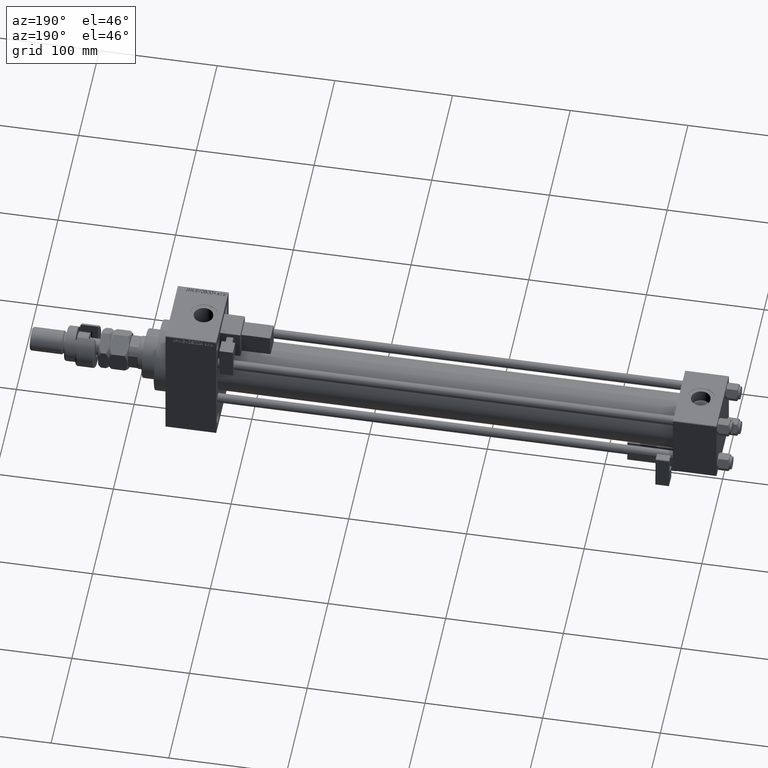
[diagram: clean part render]
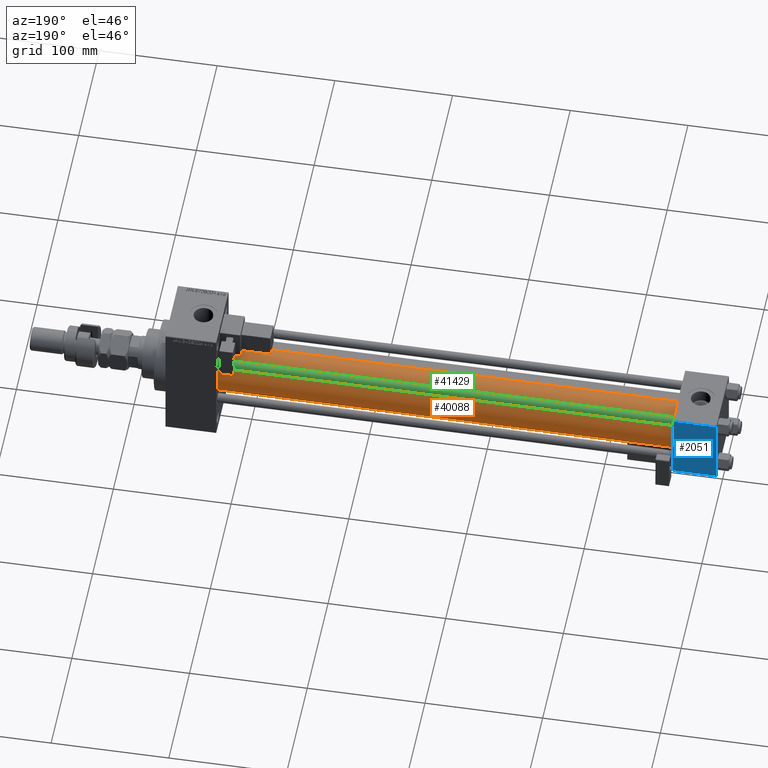
[diagram: same view with three faces highlighted in distinct colors, each labeled with its STEP entity id]
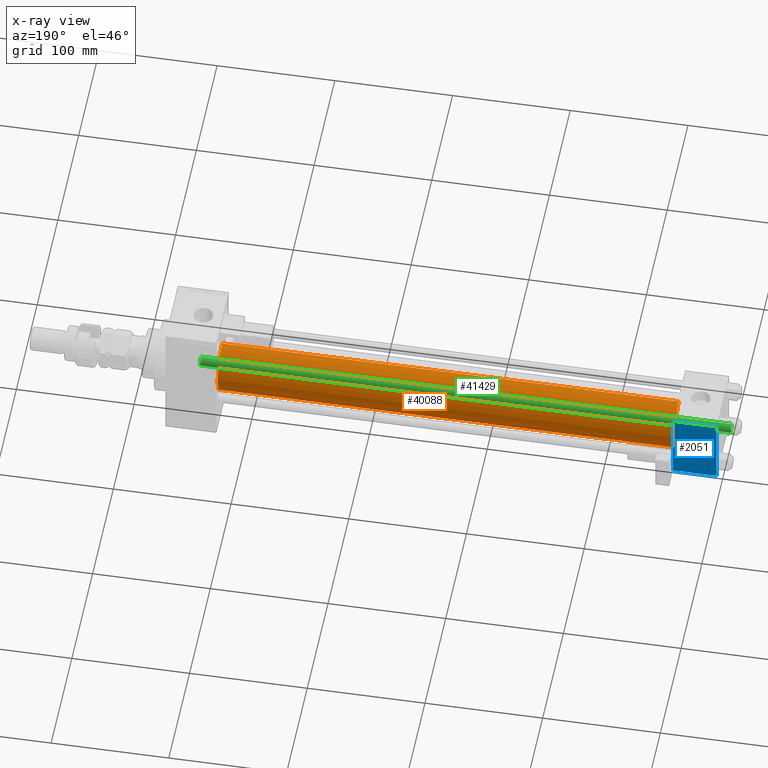
[diagram: x-ray of the same camera — body ghosted, the three highlighted faces saturated]
A machine part, auxiliary view with three faces highlighted in distinct colors.
The next image is the same camera in x-ray (body ghosted, the three faces saturated) — at least one of them is partly hidden behind the body in this view.
Their STEP definitions:

[orange] entity #40088 — the highlighted cylindrical surface (edge-blend (fillet) strip) has radius 23 mm, axis along (-1, -0, -0).
#1324 = ORIENTED_EDGE ( 'NONE', *, *, #31784, .T. ) ;
#5125 = CIRCLE ( 'NONE', #13599, 23.00000000000000000 ) ;
#5643 = VERTEX_POINT ( 'NONE', #33679 ) ;
#5698 = LINE ( 'NONE', #26179, #31874 ) ;
#8055 = ORIENTED_EDGE ( 'NONE', *, *, #13447, .F. ) ;
#9869 = VERTEX_POINT ( 'NONE', #35624 ) ;
#13447 = EDGE_CURVE ( 'NONE', #9869, #5643, #47690, .T. ) ;
#13599 = AXIS2_PLACEMENT_3D ( 'NONE', #50609, #14198, #43442 ) ;
#13610 = FACE_OUTER_BOUND ( 'NONE', #20341, .T. ) ;
#14136 = CYLINDRICAL_SURFACE ( 'NONE', #34242, 23.00000000000000000 ) ;
#14198 = DIRECTION ( 'NONE',  ( 1.000000000000000000, 0.000000000000000000, 0.000000000000000000 ) ) ;
#14468 = DIRECTION ( 'NONE',  ( -1.000000000000000000, -0.000000000000000000, -0.000000000000000000 ) ) ;
#19943 = EDGE_CURVE ( 'NONE', #39321, #9869, #5125, .T. ) ;
#20341 = EDGE_LOOP ( 'NONE', ( #46927, #33229, #1324, #8055 ) ) ;
#22001 = DIRECTION ( 'NONE',  ( 1.000000000000000000, -0.000000000000000000, 0.000000000000000000 ) ) ;
#22122 = CARTESIAN_POINT ( 'NONE',  ( 425.0000000000000000, -2.602085213965210642E-15, 0.000000000000000000 ) ) ;
#24184 = AXIS2_PLACEMENT_3D ( 'NONE', #42733, #22001, #43000 ) ;
#26179 = CARTESIAN_POINT ( 'NONE',  ( 425.0000000000000000, 2.146024240737012665E-16, -23.00000000000000000 ) ) ;
#29269 = CIRCLE ( 'NONE', #24184, 23.00000000000000000 ) ;
#30009 = CARTESIAN_POINT ( 'NONE',  ( 36.99999999999997868, 2.146024240737012665E-16, -23.00000000000000000 ) ) ;
#31784 = EDGE_CURVE ( 'NONE', #35837, #5643, #29269, .T. ) ;
#31874 = VECTOR ( 'NONE', #42667, 1000.000000000000000 ) ;
#33229 = ORIENTED_EDGE ( 'NONE', *, *, #43906, .T. ) ;
#33679 = CARTESIAN_POINT ( 'NONE',  ( 36.99999999999997868, -2.602085213965210642E-15, 23.00000000000000000 ) ) ;
#33800 = DIRECTION ( 'NONE',  ( -1.000000000000000000, -0.000000000000000000, -0.000000000000000000 ) ) ;
#34242 = AXIS2_PLACEMENT_3D ( 'NONE', #22122, #33800, #38313 ) ;
#35624 = CARTESIAN_POINT ( 'NONE',  ( 425.0000000000000000, -2.602085213965210642E-15, 23.00000000000000000 ) ) ;
#35837 = VERTEX_POINT ( 'NONE', #30009 ) ;
#38313 = DIRECTION ( 'NONE',  ( 0.000000000000000000, 0.000000000000000000, 1.000000000000000000 ) ) ;
#39321 = VERTEX_POINT ( 'NONE', #52049 ) ;
#40088 = ADVANCED_FACE ( 'NONE', ( #13610 ), #14136, .T. ) ;
#42667 = DIRECTION ( 'NONE',  ( -1.000000000000000000, -0.000000000000000000, -0.000000000000000000 ) ) ;
#42733 = CARTESIAN_POINT ( 'NONE',  ( 36.99999999999997868, -2.602085213965210642E-15, 0.000000000000000000 ) ) ;
#43000 = DIRECTION ( 'NONE',  ( 0.000000000000000000, 0.000000000000000000, 1.000000000000000000 ) ) ;
#43442 = DIRECTION ( 'NONE',  ( 0.000000000000000000, 0.000000000000000000, -1.000000000000000000 ) ) ;
#43697 = CARTESIAN_POINT ( 'NONE',  ( 425.0000000000000000, -2.602085213965210642E-15, 23.00000000000000000 ) ) ;
#43906 = EDGE_CURVE ( 'NONE', #39321, #35837, #5698, .T. ) ;
#45622 = VECTOR ( 'NONE', #14468, 1000.000000000000000 ) ;
#46927 = ORIENTED_EDGE ( 'NONE', *, *, #19943, .F. ) ;
#47690 = LINE ( 'NONE', #43697, #45622 ) ;
#50609 = CARTESIAN_POINT ( 'NONE',  ( 425.0000000000000000, -2.602085213965210642E-15, 0.000000000000000000 ) ) ;
#52049 = CARTESIAN_POINT ( 'NONE',  ( 425.0000000000000000, 2.146024240737012665E-16, -23.00000000000000000 ) ) ;

[blue] entity #2051 — the highlighted planar face has unit normal (0, 1, 0).
#2051 = ADVANCED_FACE ( 'NONE', ( #2849 ), #19067, .T. ) ;
#2849 = FACE_OUTER_BOUND ( 'NONE', #5304, .T. ) ;
#3353 = CARTESIAN_POINT ( 'NONE',  ( 37.00000000000000000, 29.99999999999999289, 30.00000000000000000 ) ) ;
#4165 = LINE ( 'NONE', #12163, #17367 ) ;
#5304 = EDGE_LOOP ( 'NONE', ( #40363, #48567, #14686, #14246 ) ) ;
#8895 = CARTESIAN_POINT ( 'NONE',  ( 37.00000000000000000, 29.99999999999999289, 30.00000000000000000 ) ) ;
#9500 = EDGE_CURVE ( 'NONE', #38039, #28847, #45583, .T. ) ;
#9712 = CARTESIAN_POINT ( 'NONE',  ( 37.00000000000000000, 29.99999999999999289, -29.50000000000000000 ) ) ;
#9965 = LINE ( 'NONE', #50372, #29298 ) ;
#12163 = CARTESIAN_POINT ( 'NONE',  ( 37.00000000000000000, 29.99999999999999289, 29.50000000000000000 ) ) ;
#14246 = ORIENTED_EDGE ( 'NONE', *, *, #41712, .T. ) ;
#14686 = ORIENTED_EDGE ( 'NONE', *, *, #32885, .F. ) ;
#15914 = EDGE_CURVE ( 'NONE', #28847, #26089, #46137, .T. ) ;
#17367 = VECTOR ( 'NONE', #28634, 1000.000000000000000 ) ;
#18097 = VECTOR ( 'NONE', #41337, 1000.000000000000000 ) ;
#19067 = PLANE ( 'NONE',  #29671 ) ;
#22213 = DIRECTION ( 'NONE',  ( 0.000000000000000000, 0.000000000000000000, -1.000000000000000000 ) ) ;
#26089 = VERTEX_POINT ( 'NONE', #48611 ) ;
#27548 = DIRECTION ( 'NONE',  ( 0.000000000000000000, -0.000000000000000000, 1.000000000000000000 ) ) ;
#28634 = DIRECTION ( 'NONE',  ( 1.000000000000000000, 0.000000000000000000, 0.000000000000000000 ) ) ;
#28847 = VERTEX_POINT ( 'NONE', #30197 ) ;
#29298 = VECTOR ( 'NONE', #22213, 1000.000000000000000 ) ;
#29671 = AXIS2_PLACEMENT_3D ( 'NONE', #3353, #40036, #27548 ) ;
#30197 = CARTESIAN_POINT ( 'NONE',  ( 37.00000000000000000, 29.99999999999999289, -29.50000000000000000 ) ) ;
#30923 = CARTESIAN_POINT ( 'NONE',  ( 0.000000000000000000, 29.99999999999999289, 29.50000000000000000 ) ) ;
#32735 = CARTESIAN_POINT ( 'NONE',  ( 37.00000000000000000, 29.99999999999999289, 29.50000000000000000 ) ) ;
#32885 = EDGE_CURVE ( 'NONE', #37991, #26089, #9965, .T. ) ;
#37991 = VERTEX_POINT ( 'NONE', #30923 ) ;
#38039 = VERTEX_POINT ( 'NONE', #32735 ) ;
#40036 = DIRECTION ( 'NONE',  ( -0.000000000000000000, 1.000000000000000000, 0.000000000000000000 ) ) ;
#40363 = ORIENTED_EDGE ( 'NONE', *, *, #9500, .T. ) ;
#41337 = DIRECTION ( 'NONE',  ( 0.000000000000000000, 0.000000000000000000, -1.000000000000000000 ) ) ;
#41712 = EDGE_CURVE ( 'NONE', #37991, #38039, #4165, .T. ) ;
#42148 = DIRECTION ( 'NONE',  ( -1.000000000000000000, 0.000000000000000000, 0.000000000000000000 ) ) ;
#42338 = VECTOR ( 'NONE', #42148, 1000.000000000000000 ) ;
#45583 = LINE ( 'NONE', #8895, #18097 ) ;
#46137 = LINE ( 'NONE', #9712, #42338 ) ;
#48567 = ORIENTED_EDGE ( 'NONE', *, *, #15914, .T. ) ;
#48611 = CARTESIAN_POINT ( 'NONE',  ( 0.000000000000000000, 29.99999999999999289, -29.50000000000000000 ) ) ;
#50372 = CARTESIAN_POINT ( 'NONE',  ( 0.000000000000000000, 29.99999999999999289, 30.00000000000000000 ) ) ;

[green] entity #41429 — the highlighted cylindrical surface (edge-blend (fillet) strip) has radius 4 mm, axis along (-1, -0, 0).
#4047 = ORIENTED_EDGE ( 'NONE', *, *, #43762, .T. ) ;
#4753 = FACE_OUTER_BOUND ( 'NONE', #48033, .T. ) ;
#5255 = CARTESIAN_POINT ( 'NONE',  ( 4.000000000000000000, 4.898587196589412829E-16, 451.5000000000000000 ) ) ;
#6906 = EDGE_CURVE ( 'NONE', #15321, #9880, #29288, .T. ) ;
#8033 = LINE ( 'NONE', #40736, #10257 ) ;
#8207 = CARTESIAN_POINT ( 'NONE',  ( 0.000000000000000000, 0.000000000000000000, 452.0000000000000000 ) ) ;
#9880 = VERTEX_POINT ( 'NONE', #27131 ) ;
#10257 = VECTOR ( 'NONE', #16559, 1000.000000000000000 ) ;
#10341 = VECTOR ( 'NONE', #45491, 1000.000000000000000 ) ;
#11858 = DIRECTION ( 'NONE',  ( -0.000000000000000000, -0.000000000000000000, 1.000000000000000000 ) ) ;
#13330 = CARTESIAN_POINT ( 'NONE',  ( 4.000000000000000000, 4.898587196589412829E-16, 452.0000000000000000 ) ) ;
#13661 = CARTESIAN_POINT ( 'NONE',  ( 0.000000000000000000, 0.000000000000000000, 451.5000000000000000 ) ) ;
#14707 = CIRCLE ( 'NONE', #35089, 4.000000000000000000 ) ;
#15321 = VERTEX_POINT ( 'NONE', #5255 ) ;
#15847 = DIRECTION ( 'NONE',  ( 1.000000000000000000, 0.000000000000000000, 0.000000000000000000 ) ) ;
#16559 = DIRECTION ( 'NONE',  ( -0.000000000000000000, -0.000000000000000000, -1.000000000000000000 ) ) ;
#17276 = VERTEX_POINT ( 'NONE', #40977 ) ;
#17812 = VERTEX_POINT ( 'NONE', #29470 ) ;
#22585 = ORIENTED_EDGE ( 'NONE', *, *, #38901, .T. ) ;
#23188 = EDGE_CURVE ( 'NONE', #17276, #17812, #8033, .T. ) ;
#24706 = DIRECTION ( 'NONE',  ( -0.000000000000000000, -0.000000000000000000, -1.000000000000000000 ) ) ;
#25714 = CARTESIAN_POINT ( 'NONE',  ( 0.000000000000000000, 0.000000000000000000, 0.5000000000000004441 ) ) ;
#26783 = CIRCLE ( 'NONE', #49677, 4.000000000000000000 ) ;
#26827 = ORIENTED_EDGE ( 'NONE', *, *, #23188, .F. ) ;
#27131 = CARTESIAN_POINT ( 'NONE',  ( 4.000000000000000000, 4.898587196589412829E-16, 0.5000000000000004441 ) ) ;
#29288 = LINE ( 'NONE', #13330, #10341 ) ;
#29470 = CARTESIAN_POINT ( 'NONE',  ( -4.000000000000000000, 0.000000000000000000, 0.5000000000000004441 ) ) ;
#33963 = ORIENTED_EDGE ( 'NONE', *, *, #6906, .T. ) ;
#35089 = AXIS2_PLACEMENT_3D ( 'NONE', #13661, #50595, #46612 ) ;
#36405 = CYLINDRICAL_SURFACE ( 'NONE', #52109, 4.000000000000000000 ) ;
#38901 = EDGE_CURVE ( 'NONE', #17276, #15321, #14707, .T. ) ;
#40736 = CARTESIAN_POINT ( 'NONE',  ( -4.000000000000000000, 0.000000000000000000, 452.0000000000000000 ) ) ;
#40977 = CARTESIAN_POINT ( 'NONE',  ( -4.000000000000000000, 0.000000000000000000, 451.5000000000000000 ) ) ;
#41429 = ADVANCED_FACE ( 'NONE', ( #4753 ), #36405, .T. ) ;
#43762 = EDGE_CURVE ( 'NONE', #9880, #17812, #26783, .T. ) ;
#45491 = DIRECTION ( 'NONE',  ( -0.000000000000000000, -0.000000000000000000, -1.000000000000000000 ) ) ;
#46612 = DIRECTION ( 'NONE',  ( 1.000000000000000000, 0.000000000000000000, 0.000000000000000000 ) ) ;
#48033 = EDGE_LOOP ( 'NONE', ( #22585, #33963, #4047, #26827 ) ) ;
#49218 = DIRECTION ( 'NONE',  ( -1.000000000000000000, 0.000000000000000000, 0.000000000000000000 ) ) ;
#49677 = AXIS2_PLACEMENT_3D ( 'NONE', #25714, #11858, #15847 ) ;
#50595 = DIRECTION ( 'NONE',  ( 0.000000000000000000, 0.000000000000000000, -1.000000000000000000 ) ) ;
#52109 = AXIS2_PLACEMENT_3D ( 'NONE', #8207, #24706, #49218 ) ;